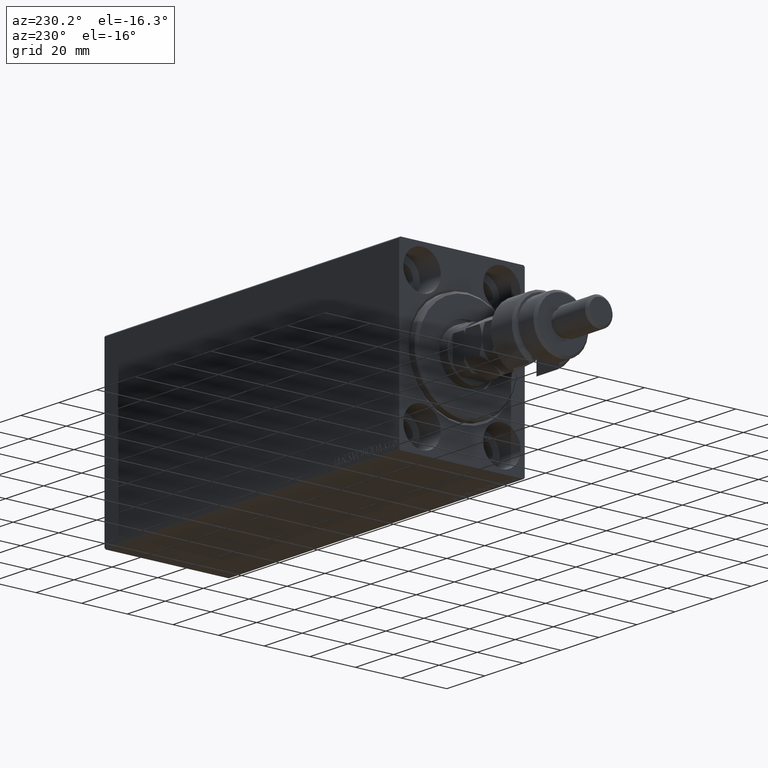
[diagram: clean part render]
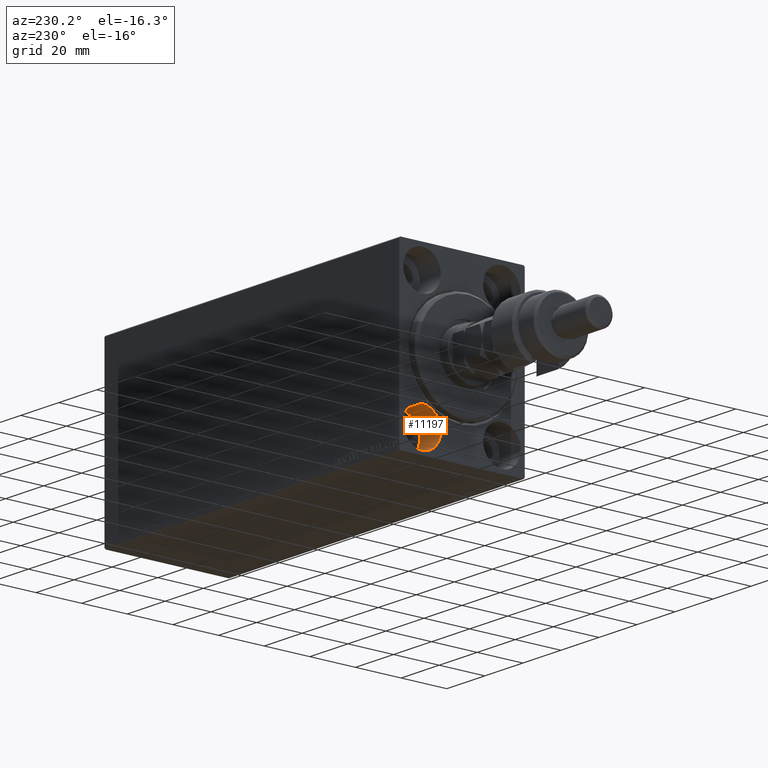
[diagram: same view with one face highlighted and labeled with its STEP entity id]
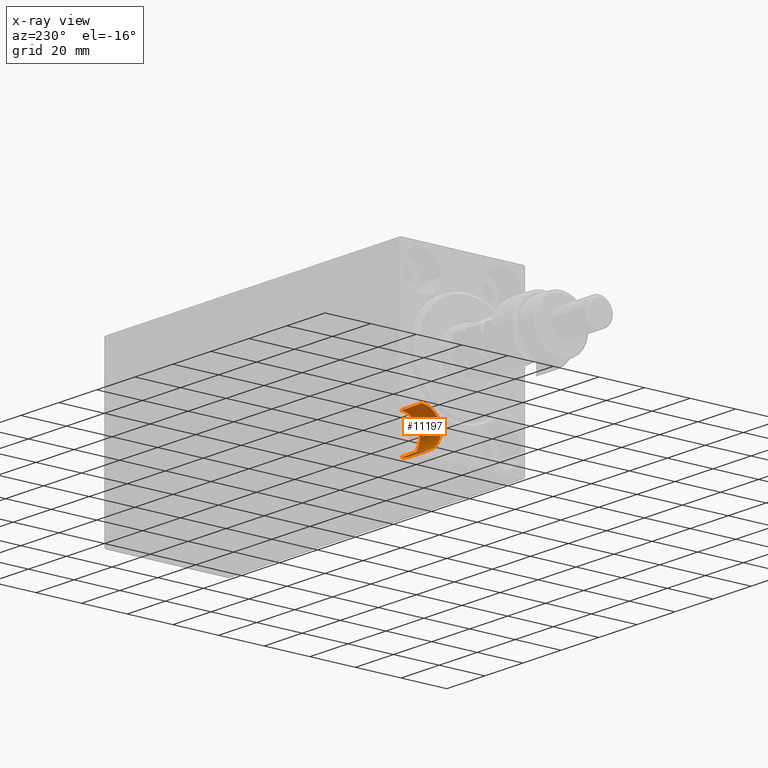
[diagram: x-ray of the same camera — body ghosted, the highlighted face saturated]
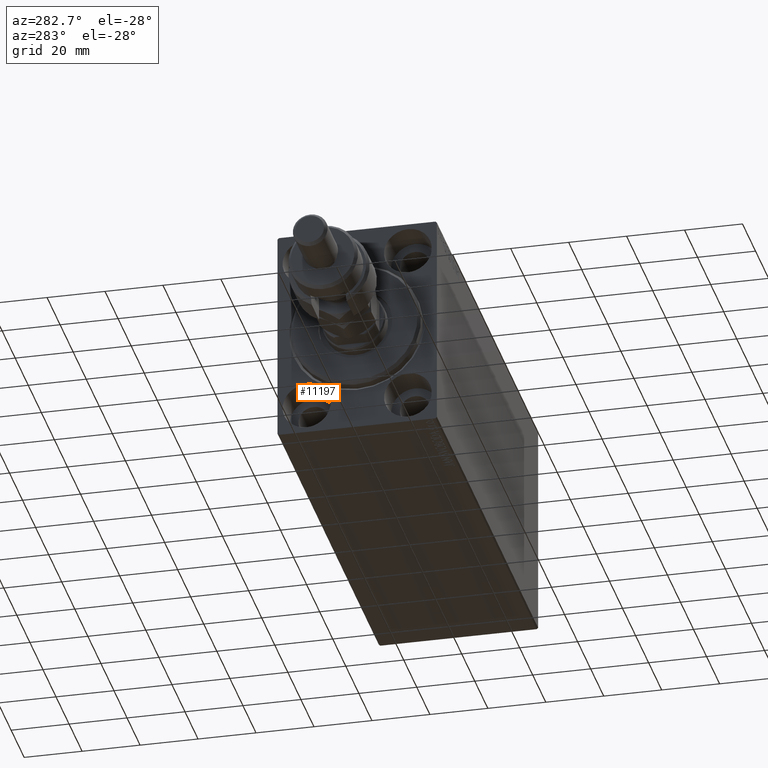
[diagram: same view with one face highlighted and labeled with its STEP entity id]
A machine part, auxiliary view. The second image highlights one B-rep face of the part: STEP entity #11197.
The next image is the same camera in x-ray: the body ghosted, the highlighted face saturated — about 0% of this face is hidden behind the body in this view.
A second angle (auxiliary view) of the same face is appended — the face is thin or edge-on in the first view.
In plain terms, the highlighted cylindrical surface (edge-blend (fillet) strip) has radius 8.25 mm, axis along (-1, -0, -0).
Its self-contained STEP definition (entity closure, byte-faithful):
#1462 = EDGE_CURVE ( 'NONE', #21714, #45432, #5242, .T. ) ;
#3043 = CYLINDRICAL_SURFACE ( 'NONE', #15286, 8.250000000000000000 ) ;
#4333 = ORIENTED_EDGE ( 'NONE', *, *, #24640, .T. ) ;
#5242 = LINE ( 'NONE', #16259, #11379 ) ;
#9875 = CARTESIAN_POINT ( 'NONE',  ( 11.00000000000000000, 17.49999999999999645, -35.75000000000000711 ) ) ;
#10312 = AXIS2_PLACEMENT_3D ( 'NONE', #13134, #27430, #34713 ) ;
#11197 = ADVANCED_FACE ( 'NONE', ( #46413 ), #3043, .F. ) ;
#11379 = VECTOR ( 'NONE', #23752, 1000.000000000000000 ) ;
#11423 = CARTESIAN_POINT ( 'NONE',  ( 11.00000000000000000, 17.49999999999999645, -35.75000000000000711 ) ) ;
#11632 = VERTEX_POINT ( 'NONE', #11423 ) ;
#12045 = ORIENTED_EDGE ( 'NONE', *, *, #1462, .F. ) ;
#13118 = CARTESIAN_POINT ( 'NONE',  ( 0.000000000000000000, 17.49999999999999645, -35.75000000000000711 ) ) ;
#13134 = CARTESIAN_POINT ( 'NONE',  ( 0.000000000000000000, 17.49999999999999645, -27.50000000000000355 ) ) ;
#15286 = AXIS2_PLACEMENT_3D ( 'NONE', #23519, #30565, #39380 ) ;
#15539 = DIRECTION ( 'NONE',  ( -1.000000000000000000, 0.000000000000000000, 0.000000000000000000 ) ) ;
#15700 = VECTOR ( 'NONE', #24181, 1000.000000000000000 ) ;
#16259 = CARTESIAN_POINT ( 'NONE',  ( 11.00000000000000000, 17.49999999999999645, -19.25000000000000355 ) ) ;
#17137 = LINE ( 'NONE', #9875, #15700 ) ;
#19306 = CIRCLE ( 'NONE', #10312, 8.250000000000000000 ) ;
#20191 = CIRCLE ( 'NONE', #42650, 8.250000000000000000 ) ;
#21714 = VERTEX_POINT ( 'NONE', #38482 ) ;
#23519 = CARTESIAN_POINT ( 'NONE',  ( 11.00000000000000000, 17.49999999999999645, -27.50000000000000355 ) ) ;
#23752 = DIRECTION ( 'NONE',  ( -1.000000000000000000, -0.000000000000000000, -0.000000000000000000 ) ) ;
#24181 = DIRECTION ( 'NONE',  ( -1.000000000000000000, -0.000000000000000000, -0.000000000000000000 ) ) ;
#24640 = EDGE_CURVE ( 'NONE', #43708, #45432, #19306, .T. ) ;
#24819 = ORIENTED_EDGE ( 'NONE', *, *, #38345, .T. ) ;
#25633 = DIRECTION ( 'NONE',  ( 0.000000000000000000, 0.000000000000000000, 1.000000000000000000 ) ) ;
#27430 = DIRECTION ( 'NONE',  ( -1.000000000000000000, 0.000000000000000000, 0.000000000000000000 ) ) ;
#28579 = CARTESIAN_POINT ( 'NONE',  ( 0.000000000000000000, 17.49999999999999645, -19.25000000000000355 ) ) ;
#30435 = ORIENTED_EDGE ( 'NONE', *, *, #32930, .F. ) ;
#30565 = DIRECTION ( 'NONE',  ( -1.000000000000000000, -0.000000000000000000, -0.000000000000000000 ) ) ;
#32930 = EDGE_CURVE ( 'NONE', #11632, #21714, #20191, .T. ) ;
#33377 = CARTESIAN_POINT ( 'NONE',  ( 11.00000000000000000, 17.49999999999999645, -27.50000000000000355 ) ) ;
#34713 = DIRECTION ( 'NONE',  ( 0.000000000000000000, 0.000000000000000000, 1.000000000000000000 ) ) ;
#38345 = EDGE_CURVE ( 'NONE', #11632, #43708, #17137, .T. ) ;
#38482 = CARTESIAN_POINT ( 'NONE',  ( 11.00000000000000000, 17.49999999999999645, -19.25000000000000355 ) ) ;
#39380 = DIRECTION ( 'NONE',  ( 0.000000000000000000, 0.000000000000000000, 1.000000000000000000 ) ) ;
#42650 = AXIS2_PLACEMENT_3D ( 'NONE', #33377, #15539, #25633 ) ;
#43708 = VERTEX_POINT ( 'NONE', #13118 ) ;
#45432 = VERTEX_POINT ( 'NONE', #28579 ) ;
#45457 = EDGE_LOOP ( 'NONE', ( #30435, #24819, #4333, #12045 ) ) ;
#46413 = FACE_OUTER_BOUND ( 'NONE', #45457, .T. ) ;